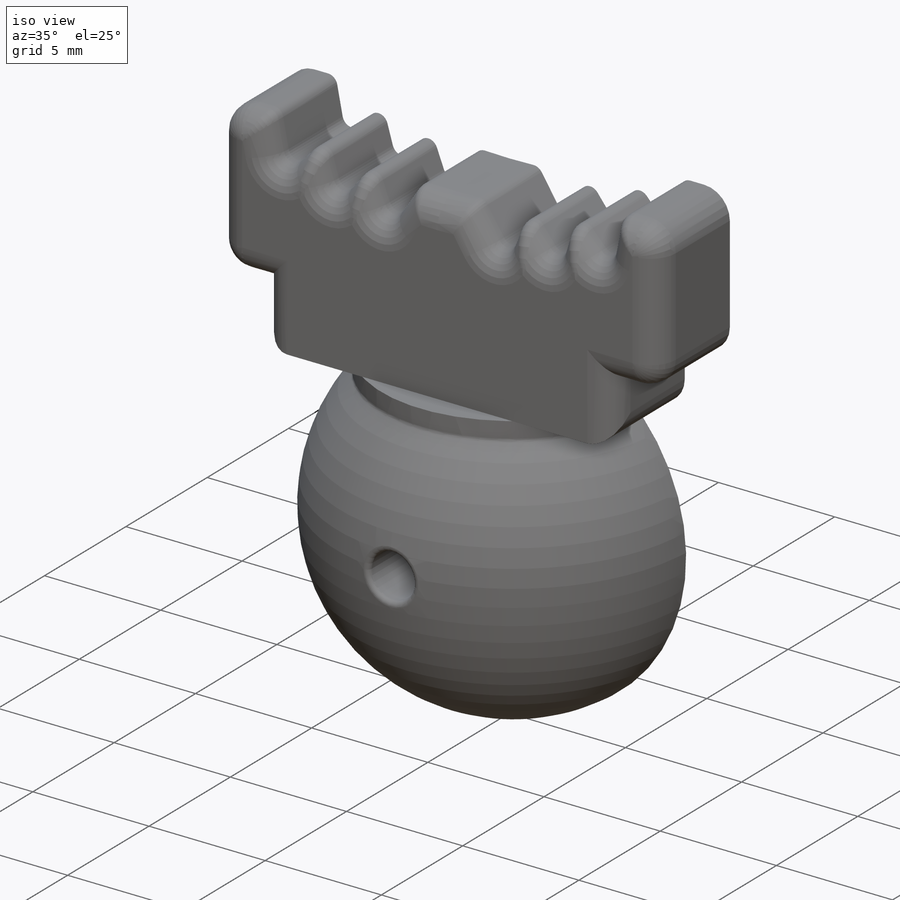
[diagram: iso view]
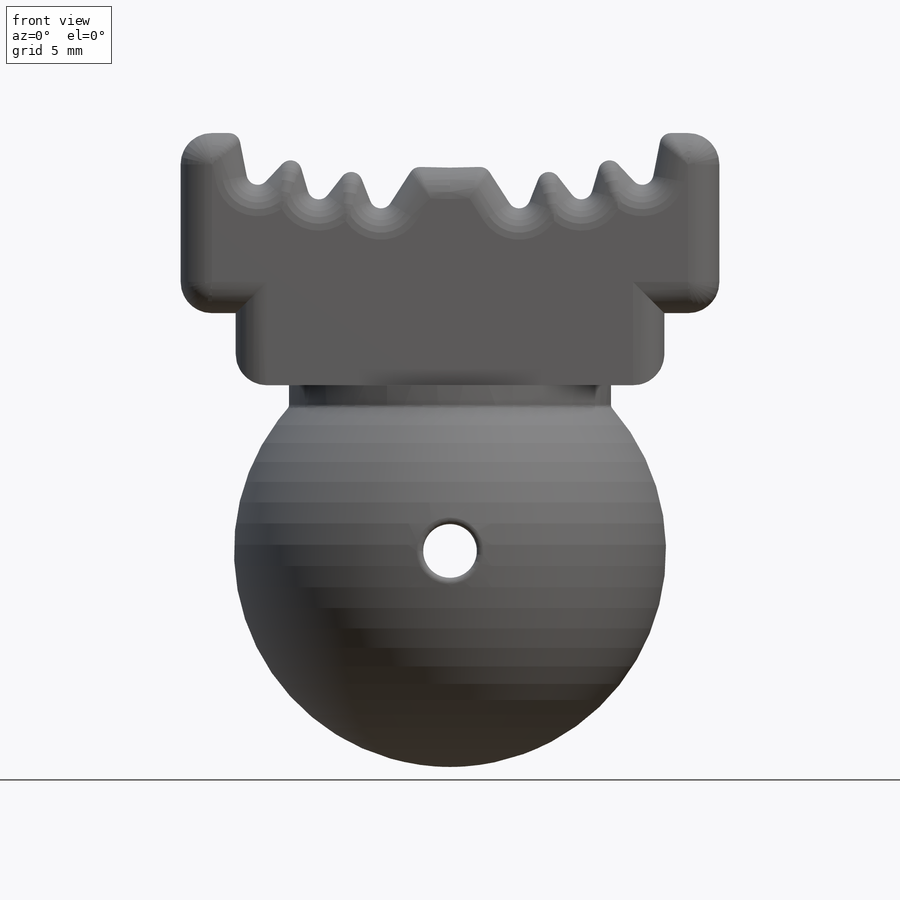
[diagram: front view]
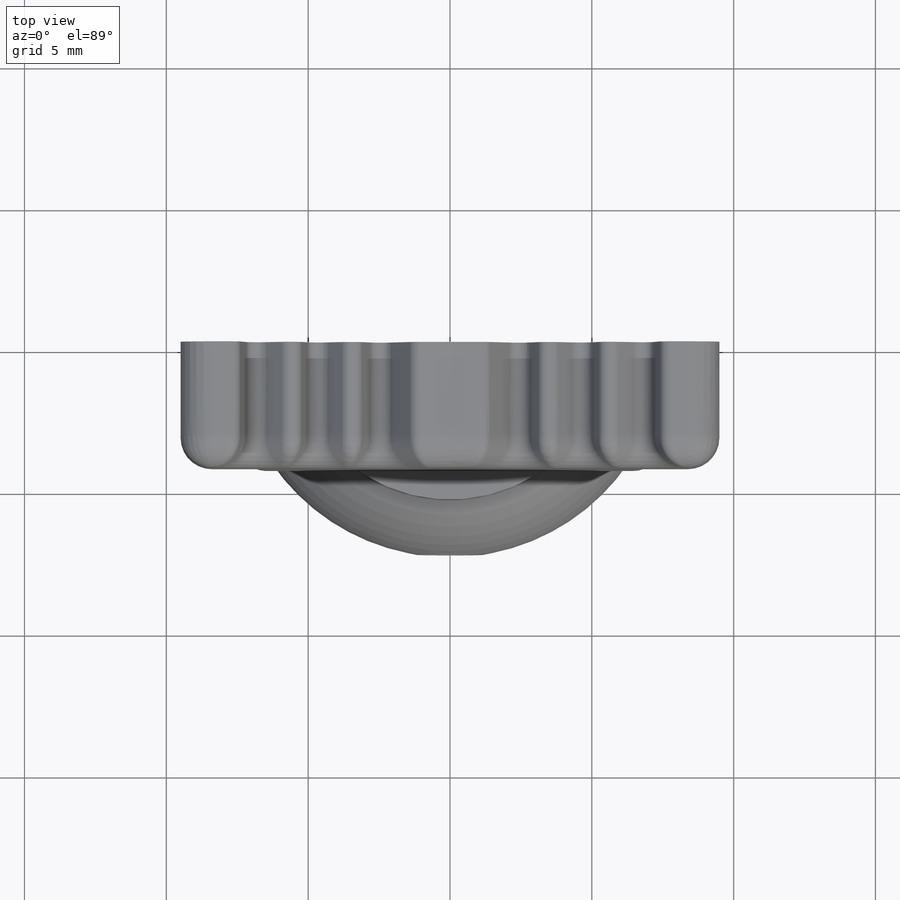
[diagram: top view]
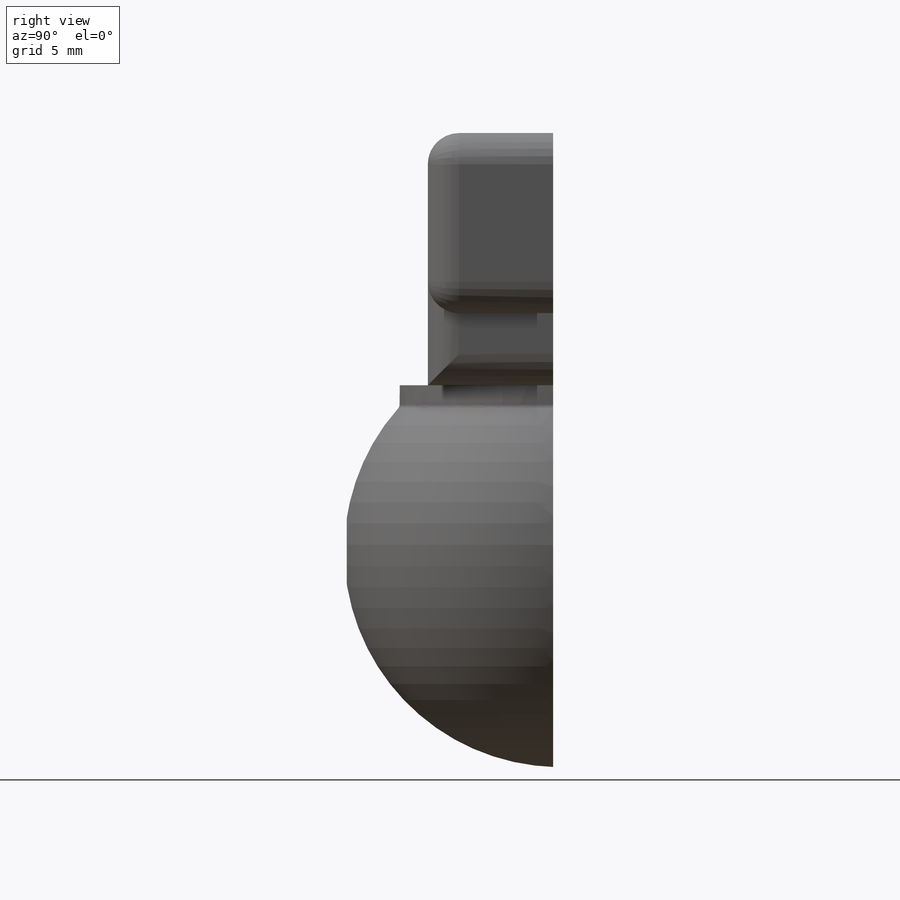
[diagram: right view]
SOLIDWORKS PART (.sldprt)
format: sldprt  version: not decoded by parser v0  size: 550,400 bytes
history: native  units: mm
features: sketch x5, fillet x4, extrude x2, cut_extrude x2, material x1, plane x1, revolve x1 (+16 scaffold rows collapsed)
feature tree (32):
  scaffold x16  (default folders/planes/origin — collapsed)
  material  "Material <not specified>"
  sketch  "Sketch1"  dims[c1.D5=33.0mm c1.D6=0.3175mm c1.D8=10.16mm c1.D10=10.16mm c2.D6=~22.319445mm c2.D1=15.113mm c2.D2=2.54mm c2.D3=19.05mm c2.D4=6.35mm c3.D6=2.54mm c3.D7=~15.318496mm c4.D7=~8.267194deg c5.D7=~15.318496mm c6.D7=~8.267194deg c7.D7=~15.318496mm c8.D7=~8.267194deg c9.D7=~2.191635mm c10.D7=60.0deg c10.D8=~2.403878mm c11.D8=60.0deg c11.D9=~2.222793mm c12.D9=60.0deg c12.D10=~2.323166mm c13.D10=70.0deg c13.D11=~2.482445mm c14.D11=~74.174148deg c14.D8=~2.432777mm c15.D8=60.0deg c16.D8=~2.321012mm c17.D8=60.0deg c18.D8=~2.343119mm c19.D8=60.0deg c20.D8=~1.738259mm c21.D8=60.0deg c22.D8=1.9685mm c22.D9=~1.347973mm c22.D10=~1.347973mm c22.D5=2.032mm c22.D6=~0.79936mm c22.D1=15.113mm c22.D2=2.54mm c22.D3=19.05mm c22.D4=6.35mm c23.D5=2.032mm c23.D3=1.27mm c23.D7=~1.941346mm c24.D7=~54.286554deg c24.D6=2.032mm c24.D5=1.27mm c25.D6=2.032mm]
  extrude  "Extrude1"  Depth=4.4196mm
  plane  "Plane1"  Offset=0.254mm
  sketch  "Sketch2"  dims[D2=15.24mm D3=0.762mm D1=5.842mm]
  revolve  "Revolve2"  Angle=360deg
  sketch  "Sketch4"
  cut_extrude  "Extrude2"  [1 undecoded]
  sketch  "Sketch5"  dims[D1=0.0mm]
  extrude  "Extrude3"  [1 undecoded]
  sketch  "Sketch6"  dims[D1=1.905mm]
  cut_extrude  "Extrude4"  [1 undecoded]
  fillet  "Fillet1"  Radius=0.396875mm
  fillet  "Fillet6"  Radius=0.396875mm
  fillet  "Fillet4"  Radius=0.198437mm
  fillet  "Fillet5"  Radius=1.104348mm
decode coverage: 10 of 14 modeling features carry decoded parameters
note: ~ marks probable driven/reference dimensions
note: 3 parameter values undecoded
summary: no parameter record found for 3 features
note: suppression state not decoded; provenance and decode notes live in map.json
